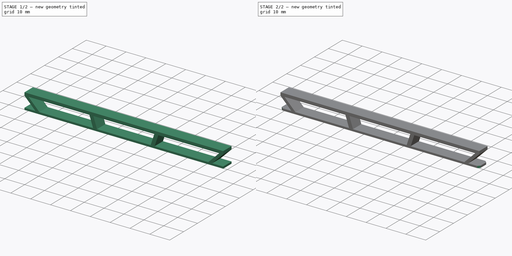
[diagram: build sequence overview — one tinted view per stage of 2, left to right]
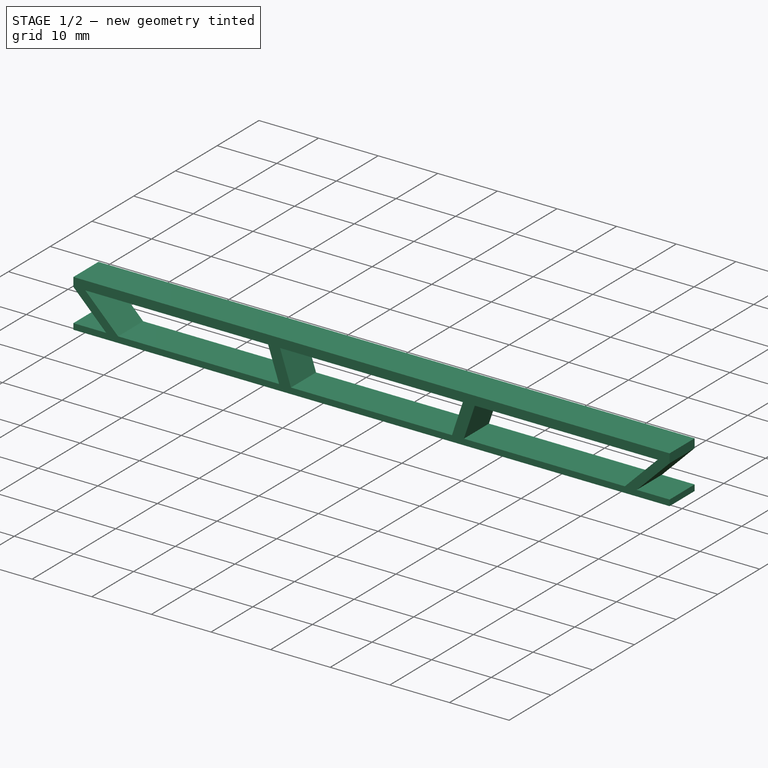
[diagram: stage 1 of 2 — iso view after this stage's code; geometry added in this stage tinted green]
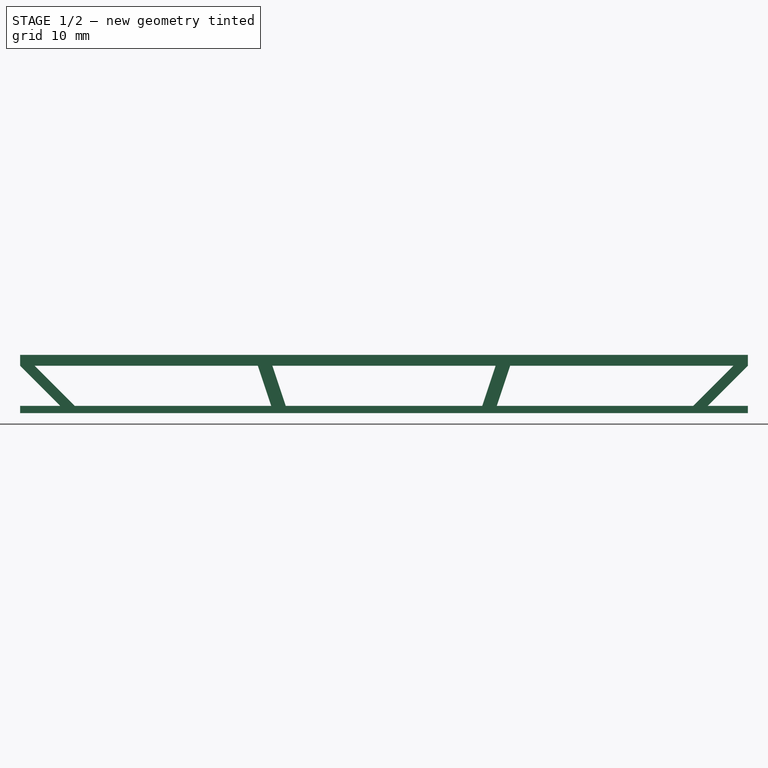
[diagram: stage 1 of 2 — front view after this stage's code; geometry added in this stage tinted green]
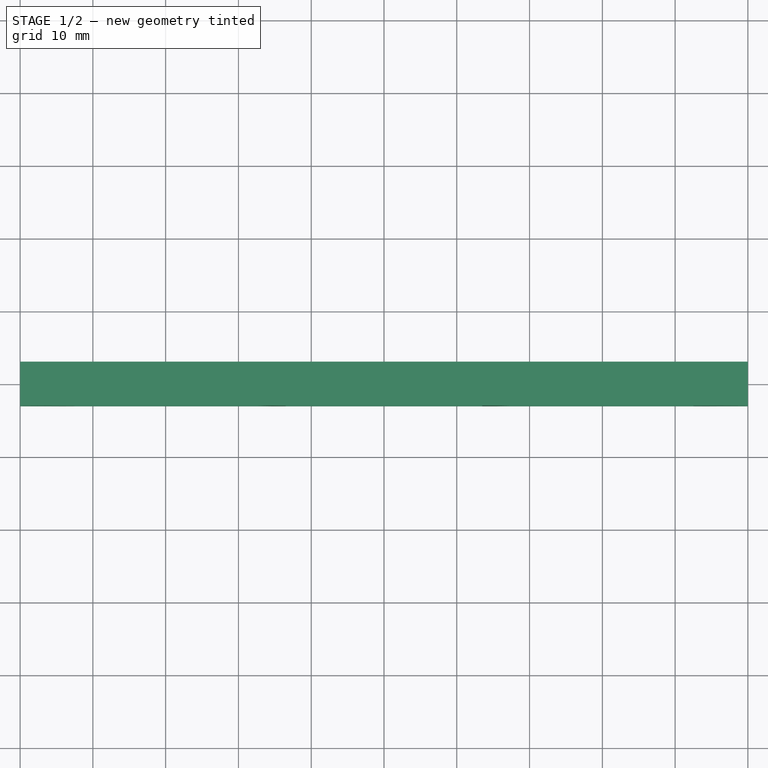
[diagram: stage 1 of 2 — top view after this stage's code; geometry added in this stage tinted green]
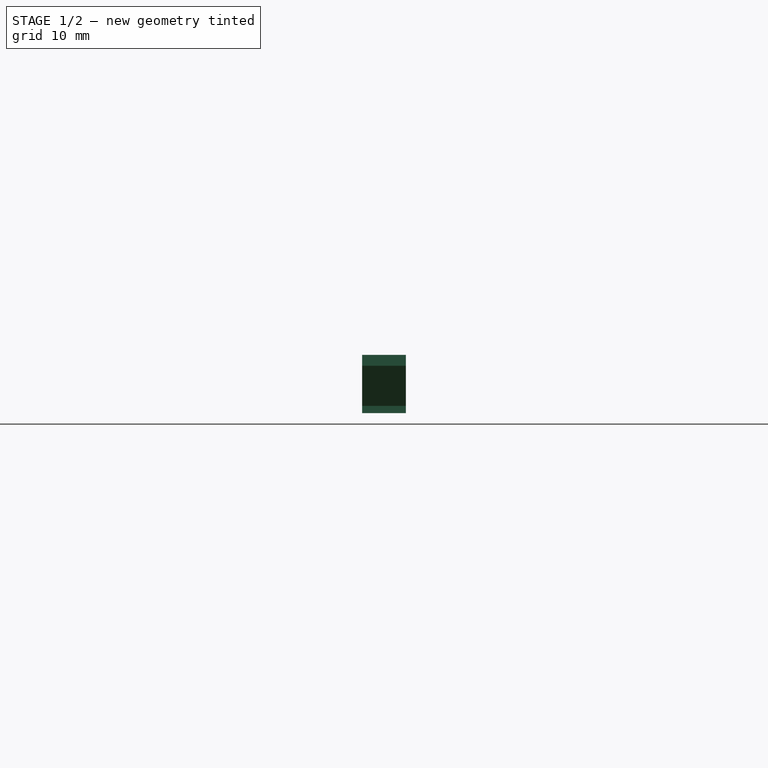
[diagram: stage 1 of 2 — right view after this stage's code; geometry added in this stage tinted green]
FCSTD DOCUMENT  (FreeCAD 0.16R6707 (Git))
Label: FrontBumpExtender
License: All rights reserved
LicenseURL: http://en.wikipedia.org/wiki/All_rights_reserved
objects: Sketcher::SketchObject×2, PartDesign::Pad×2, PartDesign::Chamfer×1, Part::MultiFuse×1
note: 8 computed .brp shape members not serialized (recipe doc carries the construction recipe); baked Part::Feature solids carry a one-line shape summary decoded from their .brp

FEATURE [Sketcher::SketchObject] Sketch
  sketch-geometry (4):
    g0: LineSegment StartX=-50 StartY=-3 StartZ=0 EndX=50 EndY=-3 EndZ=0
    g1: LineSegment StartX=50 StartY=-3 StartZ=0 EndX=50 EndY=3 EndZ=0
    g2: LineSegment StartX=50 StartY=3 StartZ=0 EndX=-50 EndY=3 EndZ=0
    g3: LineSegment StartX=-50 StartY=3 StartZ=0 EndX=-50 EndY=-3 EndZ=0
  constraints (11):
    c: Coincident(g0,g1)
    c: Coincident(g1,g2)
    c: Coincident(g2,g3)
    c: Coincident(g3,g0)
    c: Horizontal(g0)
    c: Horizontal(g2)
    c: Vertical(g1)
    c: Vertical(g3)
    c: Distance(g3) = 6
    c: Distance(g2) = 100
    c: Symmetric(g0,g1,g-1)
FEATURE [PartDesign::Pad] Pad
  Length = 1
  Length2 = 100
  Sketch = -> Sketch
  Type = 0
FEATURE [Sketcher::SketchObject] Sketch001
  Placement = pos=(0,0,0) rot=(-1,0,0;4.71239rad)
  sketch-geometry (24):
    g0: LineSegment StartX=-50 StartY=8 StartZ=0 EndX=-50 EndY=6.5 EndZ=0
    g1: LineSegment StartX=-50 StartY=6.5 StartZ=0 EndX=-43.5 EndY=0 EndZ=0
    g2: LineSegment StartX=-43.5 StartY=0 StartZ=0 EndX=43.5 EndY=0 EndZ=0
    g3: LineSegment StartX=43.5 StartY=0 StartZ=0 EndX=50 EndY=6.5 EndZ=0
    g4: LineSegment StartX=50 StartY=6.5 StartZ=0 EndX=50 EndY=8 EndZ=0
    g5: LineSegment StartX=50 StartY=8 StartZ=0 EndX=-50 EndY=8 EndZ=0
    g6: LineSegment StartX=-42.5 StartY=1 StartZ=0 EndX=-48 EndY=6.5 EndZ=0
    g7: LineSegment StartX=48 StartY=6.5 StartZ=0 EndX=42.5 EndY=1 EndZ=0
    g8: LineSegment StartX=-15.5 StartY=1 StartZ=0 EndX=-17.3333 EndY=6.5 EndZ=0
    g9: LineSegment StartX=-13.5 StartY=1 StartZ=0 EndX=-15.3333 EndY=6.5 EndZ=0
    g10: LineSegment StartX=15.3333 StartY=6.5 StartZ=0 EndX=13.5 EndY=1 EndZ=0
    g11: LineSegment StartX=17.3333 StartY=6.5 StartZ=0 EndX=15.5 EndY=1 EndZ=0
    g12: LineSegment StartX=-15.3333 StartY=6.5 StartZ=0 EndX=15.3333 EndY=6.5 EndZ=0
    g13: LineSegment StartX=17.3333 StartY=6.5 StartZ=0 EndX=48 EndY=6.5 EndZ=0
    g14: LineSegment StartX=-17.3333 StartY=6.5 StartZ=0 EndX=-48 EndY=6.5 EndZ=0
    g15: LineSegment [constr] StartX=-50 StartY=6.5 StartZ=0 EndX=-48 EndY=6.5 EndZ=0
    g16: LineSegment [constr] StartX=-17.3333 StartY=6.5 StartZ=0 EndX=-15.3333 EndY=6.5 EndZ=0
    g17: LineSegment [constr] StartX=15.3333 StartY=6.5 StartZ=0 EndX=17.3333 EndY=6.5 EndZ=0
    g18: LineSegment [constr] StartX=48 StartY=6.5 StartZ=0 EndX=50 EndY=6.5 EndZ=0
    g19: LineSegment StartX=-42.5 StartY=1 StartZ=0 EndX=-15.5 EndY=1 EndZ=0
    g20: LineSegment StartX=-13.5 StartY=1 StartZ=0 EndX=13.5 EndY=1 EndZ=0
    g21: LineSegment StartX=15.5 StartY=1 StartZ=0 EndX=42.5 EndY=1 EndZ=0
    g22: LineSegment [constr] StartX=-15.5 StartY=1 StartZ=0 EndX=-13.5 EndY=1 EndZ=0
    g23: LineSegment [constr] StartX=13.5 StartY=1 StartZ=0 EndX=15.5 EndY=1 EndZ=0
  constraints (67):
    c: Vertical(g0)
    c: Coincident(g0,g1)
    c: PointOnObject(g1,g-1)
    c: Coincident(g1,g2)
    c: Horizontal(g2)
    c: Coincident(g2,g3)
    c: Coincident(g3,g4)
    c: Coincident(g4,g5)
    c: Coincident(g5,g0)
    c: Horizontal(g5)
    c: Parallel(g6,g1)
    c: Parallel(g9,g8)
    c: Parallel(g10,g11)
    c: Parallel(g7,g3)
    c: Vertical(g4)
    c: Distance(g5) = 100
    c: Symmetric(g0,g4,g-2)
    c: Coincident(g12,g9)
    c: Coincident(g12,g10)
    c: Horizontal(g12)
    c: Coincident(g13,g11)
    c: Coincident(g13,g7)
    c: Horizontal(g13)
    c: Coincident(g14,g8)
    c: Coincident(g14,g6)
    c: Horizontal(g14)
    c: Equal(g14,g12)
    c: Equal(g12,g13)
    c: Symmetric(g9,g10,g-2)
    c: Coincident(g15,g0)
    c: Coincident(g15,g6)
    c: Horizontal(g15)
    c: Coincident(g16,g8)
    c: Coincident(g16,g9)
    c: Coincident(g17,g10)
    c: Coincident(g17,g11)
    c: Horizontal(g17)
    c: Coincident(g18,g7)
    c: Coincident(g18,g3)
    c: Horizontal(g16)
    c: Horizontal(g18)
    c: Equal(g18,g17)
    c: Equal(g17,g16)
    c: Equal(g16,g15)
    c: Distance(g16) = 2
    c: DistanceY(g4) = 8
    c: Distance(g4) = 1.5
    c: Coincident(g19,g6)
    c: Coincident(g19,g8)
    c: Horizontal(g19)
    c: Coincident(g20,g9)
    c: Coincident(g20,g10)
    c: Horizontal(g20)
    c: Coincident(g21,g11)
    c: Coincident(g21,g7)
    c: Horizontal(g21)
    c: Coincident(g22,g8)
    c: Coincident(g22,g9)
    c: Coincident(g23,g10)
    c: Coincident(g23,g11)
    c: Horizontal(g22)
    c: Horizontal(g23)
    c: Symmetric(g9,g10,g-2)
    c: Equal(g19,g20)
    c: Equal(g20,g21)
    c: Distance(g19) = 27
    c: DistanceY(g9) = 1
FEATURE [PartDesign::Pad] Pad001
  Length = 6
  Length2 = 100
  Midplane = true
  Placement = pos=(0,0,0) rot=(-1,0,0;4.71239rad)
  Sketch = -> Sketch001
  Type = 0
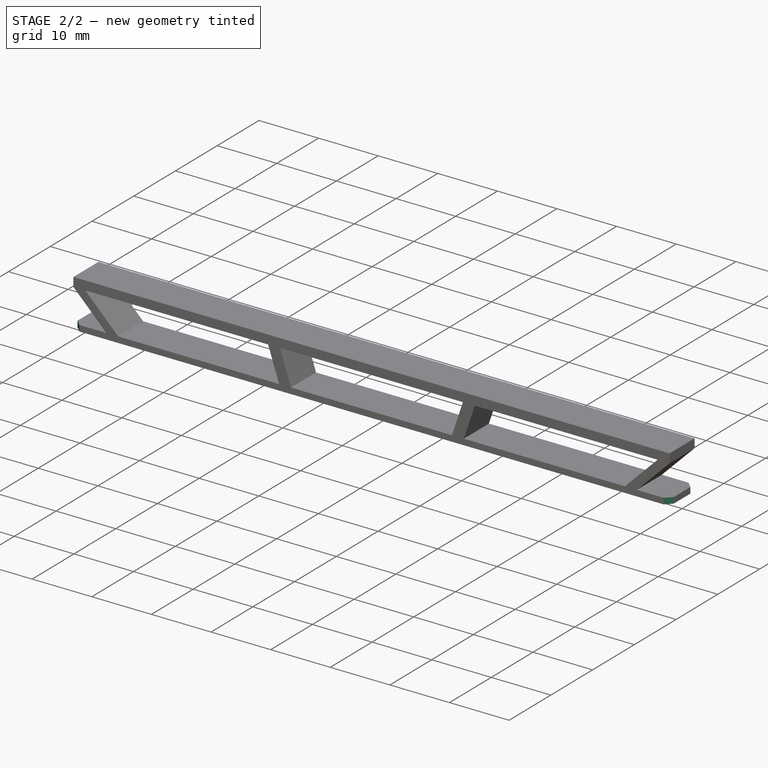
[diagram: stage 2 of 2 — iso view after this stage's code; geometry added in this stage tinted green]
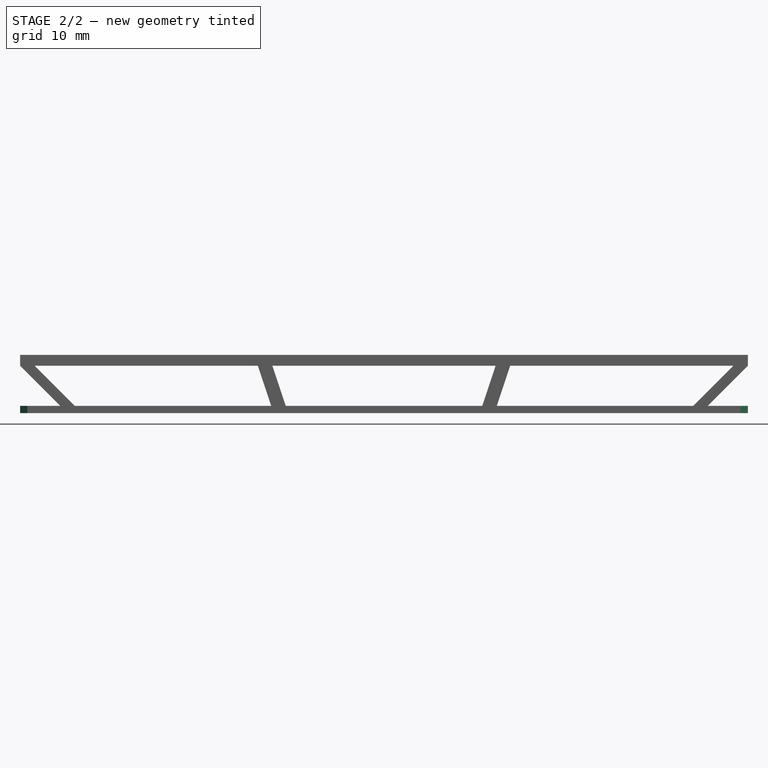
[diagram: stage 2 of 2 — front view after this stage's code; geometry added in this stage tinted green]
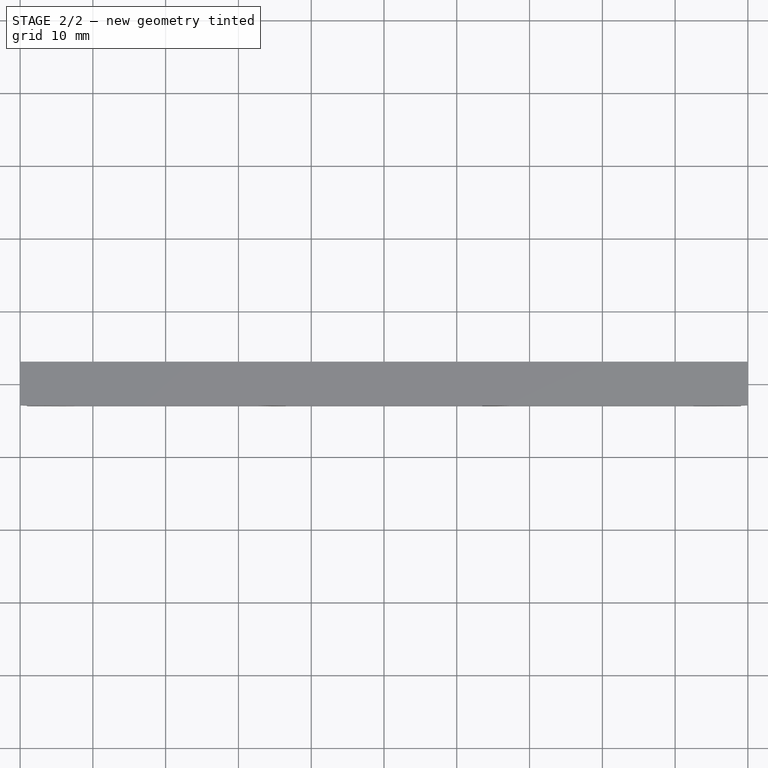
[diagram: stage 2 of 2 — top view after this stage's code; geometry added in this stage tinted green]
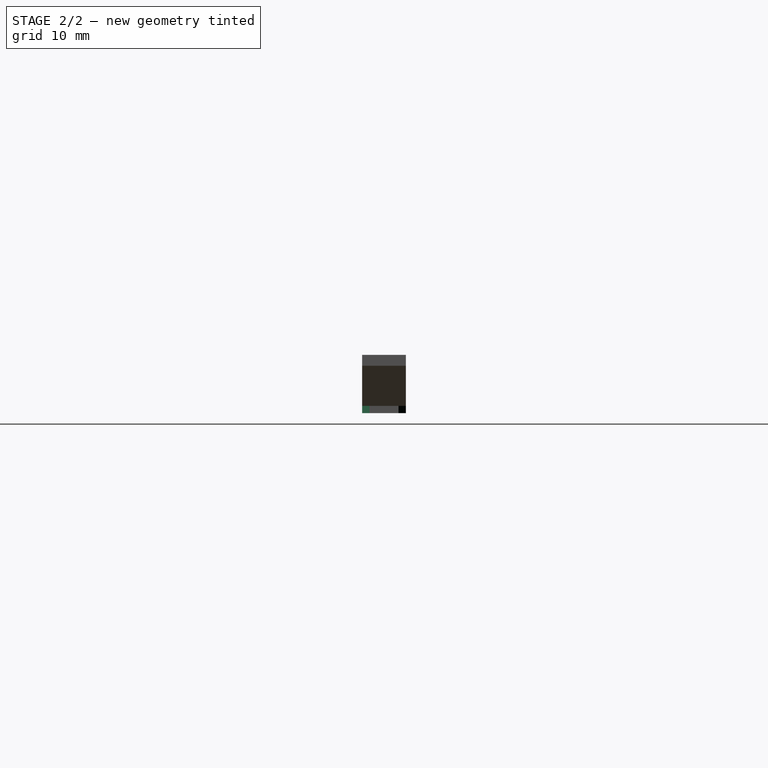
[diagram: stage 2 of 2 — right view after this stage's code; geometry added in this stage tinted green]
FEATURE [PartDesign::Chamfer] Chamfer
  Base = -> Pad [Edge8,Edge1,Edge5,Edge2]
  Size = 1
FEATURE [Part::MultiFuse] Fusion
  Shapes = -> [Pad001,Chamfer]
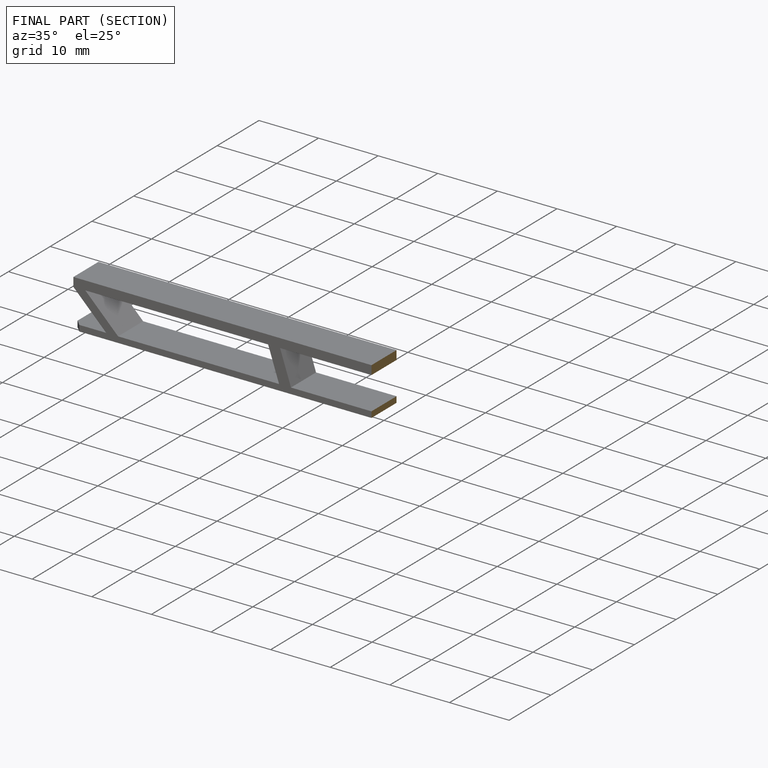
[diagram: finished part — half-section view (interior)]
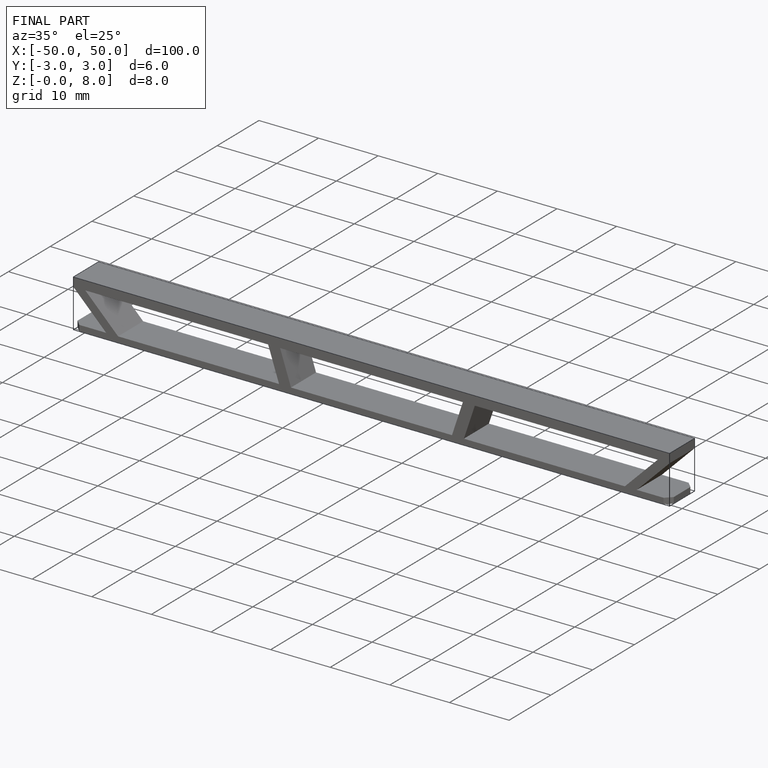
[diagram: finished part — iso view with bounding-box wireframe]
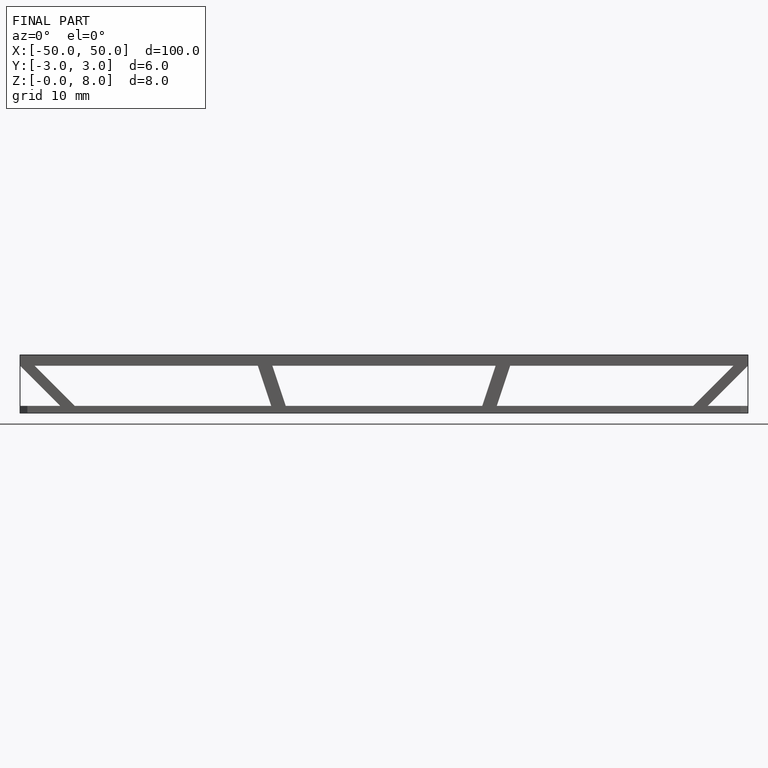
[diagram: finished part — front view with bounding-box wireframe]
